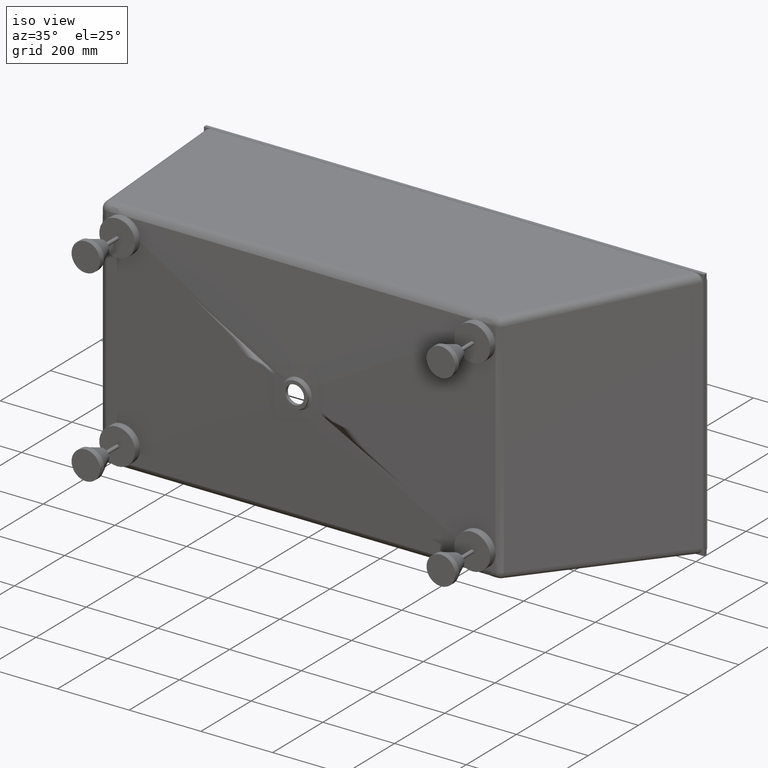
[diagram: clean part render]
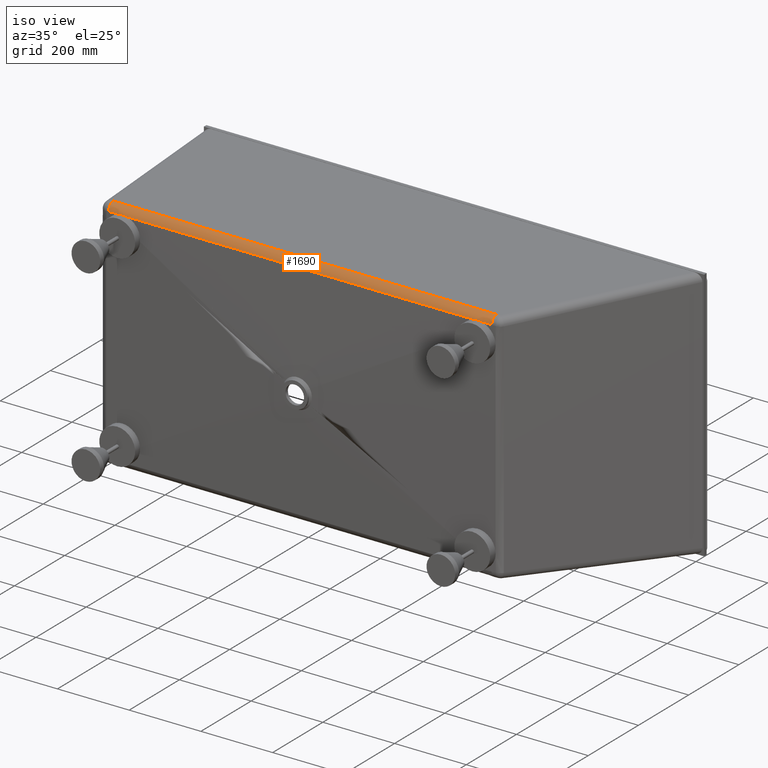
[diagram: same view with one face highlighted and labeled with its STEP entity id]
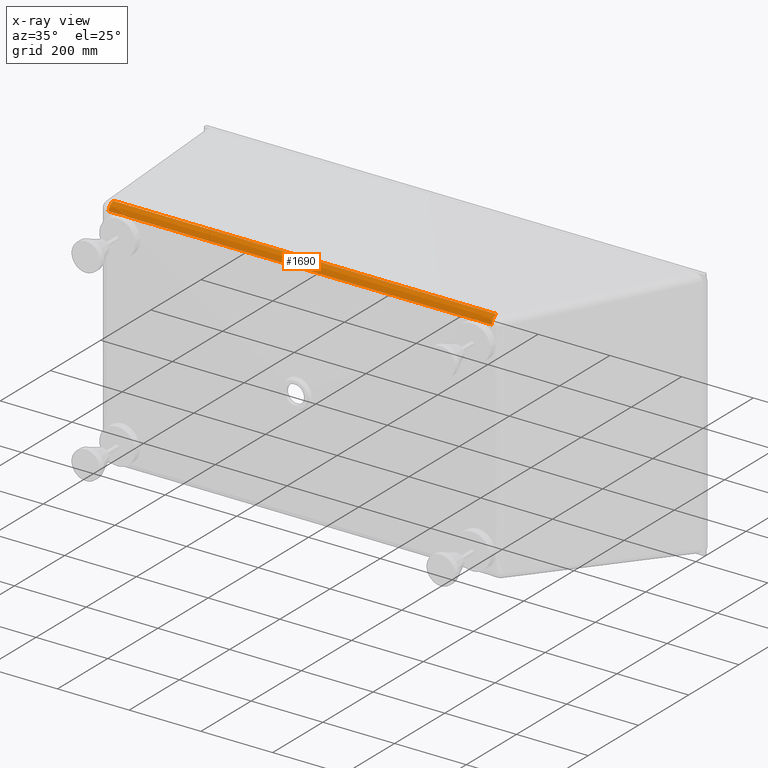
[diagram: x-ray of the same camera — body ghosted, the highlighted face saturated]
A machine part, iso view. The second image highlights one B-rep face of the part: STEP entity #1690.
The next image is the same camera in x-ray: the body ghosted, the highlighted face saturated — about 0% of this face is hidden behind the body in this view.
In plain terms, the highlighted face is a freeform B-spline surface patch.
Its self-contained STEP definition (entity closure, byte-faithful):
#12 = CARTESIAN_POINT ( 'NONE',  ( 360.4141559660058100, -433.3531879387952000, 311.3480932431434700 ) ) ;
#43 = CARTESIAN_POINT ( 'NONE',  ( -275.2632870983456400, -433.3560925314925500, 311.3554047723478700 ) ) ;
#54 = CARTESIAN_POINT ( 'NONE',  ( 180.2066036739043100, -414.5573102987468100, 330.5164267359443800 ) ) ;
#88 = CARTESIAN_POINT ( 'NONE',  ( -495.0000000000113100, -433.2683219678546000, 312.4999999999998900 ) ) ;
#100 = CARTESIAN_POINT ( 'NONE',  ( -493.2036411436475900, -433.2683973174894200, 312.5000000000004000 ) ) ;
#112 = CARTESIAN_POINT ( 'NONE',  ( -491.4119105093896600, -433.2786264664143800, 312.4034738479964500 ) ) ;
#114 = CARTESIAN_POINT ( 'NONE',  ( -436.1849997381701800, -433.3503079870133100, 311.3412174726932400 ) ) ;
#124 = CARTESIAN_POINT ( 'NONE',  ( -487.8376993706336900, -433.3109295575658300, 312.0169924165924700 ) ) ;
#134 = CARTESIAN_POINT ( 'NONE',  ( 180.2071020365930000, -432.6226637754771800, 329.4487344706837500 ) ) ;
#148 = CARTESIAN_POINT ( 'NONE',  ( 174.2101377613966500, -433.3586952968697100, 311.3618973699287300 ) ) ;
#189 = CARTESIAN_POINT ( 'NONE',  ( -484.2774998942145400, -433.3484600178455800, 311.3367483712974600 ) ) ;
#207 = B_SPLINE_CURVE_WITH_KNOTS ( 'NONE', 3,
 ( #4718, #8645, #5580, #7264, #3902, #7764, #148, #2211, #4733, #9946, #2199, #4728, #7274, #2189, #43, #4726, #7866, #114, #3582 ),
 .UNSPECIFIED., .F., .F.,
 ( 4, 3, 3, 3, 3, 3, 4 ),
 ( 0.04993263667955841900, 0.2000000000010019600, 0.3600000000308256600, 0.5200000001242122100, 0.6800000002347763600, 0.8742101379838663800, 1.018487639188252900 ),
 .UNSPECIFIED. ) ;
#258 = B_SPLINE_CURVE_WITH_KNOTS ( 'NONE', 3,
 ( #7984, #8594, #7949, #7942, #7883, #7880, #7863, #7852, #7831, #7760, #7716, #7710, #7669 ),
 .UNSPECIFIED., .F., .F.,
 ( 4, 3, 3, 3, 4 ),
 ( 0.0000000000000000000, 0.2993932388550118500, 0.6049166593372070600, 0.9104400797825722400, 1.067966100722419500 ),
 .UNSPECIFIED. ) ;
#283 = CARTESIAN_POINT ( 'NONE',  ( -486.0552179081805700, -433.3330597876689600, 311.7270606305874600 ) ) ;
#372 = CARTESIAN_POINT ( 'NONE',  ( -360.4840514003302600, -432.6319169940838400, 329.4481875897772100 ) ) ;
#648 = CARTESIAN_POINT ( 'NONE',  ( 533.9830500741080600, -414.5417389036713900, 330.5173470311615900 ) ) ;
#671 = CARTESIAN_POINT ( 'NONE',  ( 533.9865318700888100, -414.8463825890997900, 330.4993420852180700 ) ) ;
#681 = CARTESIAN_POINT ( 'NONE',  ( 533.9900811161943500, -415.1565087494192900, 330.4738939185780300 ) ) ;
#691 = VERTEX_POINT ( 'NONE', #5831 ) ;
#707 = CARTESIAN_POINT ( 'NONE',  ( 533.9971272928512500, -415.7713351117566300, 330.4089108589101900 ) ) ;
#716 = CARTESIAN_POINT ( 'NONE',  ( 534.0006449607889200, -416.0778523652395500, 330.3693110761851700 ) ) ;
#726 = CARTESIAN_POINT ( 'NONE',  ( 534.0111816975534100, -416.9947151813806300, 330.2291777561308700 ) ) ;
#738 = CARTESIAN_POINT ( 'NONE',  ( 534.0181835377227300, -417.6022752798871800, 330.1071050906753600 ) ) ;
#747 = CARTESIAN_POINT ( 'NONE',  ( 534.0388345695366800, -419.3891581524299000, 329.6618097387086000 ) ) ;
#770 = CARTESIAN_POINT ( 'NONE',  ( 534.0522316779391800, -420.5416497328745300, 329.2590854145710800 ) ) ;
#788 = CARTESIAN_POINT ( 'NONE',  ( 534.0717765799662400, -422.2127238121050800, 328.4975246758359000 ) ) ;
#820 = CARTESIAN_POINT ( 'NONE',  ( 534.0781995240620300, -422.7601072689754500, 328.2172475718949700 ) ) ;
#847 = CARTESIAN_POINT ( 'NONE',  ( 534.0908529321503700, -423.8347484260259000, 327.6021079014643100 ) ) ;
#882 = CARTESIAN_POINT ( 'NONE',  ( 534.0969842544361700, -424.3535863214855800, 327.2720684121611000 ) ) ;
#890 = CARTESIAN_POINT ( 'NONE',  ( 534.1148117048854800, -425.8565086810834800, 326.2167982251924600 ) ) ;
#897 = CARTESIAN_POINT ( 'NONE',  ( 534.1259459384227700, -426.7874390396737600, 325.4269473443825400 ) ) ;
#917 = CARTESIAN_POINT ( 'NONE',  ( 534.1415115163160900, -428.0763922428568500, 324.1115518871674200 ) ) ;
#939 = CARTESIAN_POINT ( 'NONE',  ( 534.1465339616700000, -428.4900129818173000, 323.6485827706057400 ) ) ;
#945 = VERTEX_POINT ( 'NONE', #4908 ) ;
#952 = CARTESIAN_POINT ( 'NONE',  ( 534.1560331175421700, -429.2675518896370500, 322.6924255082587400 ) ) ;
#957 = CARTESIAN_POINT ( 'NONE',  ( 534.1605133414454900, -429.6317924715461300, 322.1994730930156300 ) ) ;
#985 = CARTESIAN_POINT ( 'NONE',  ( 534.1731662018659100, -430.6527716223257600, 320.6771126700680800 ) ) ;
#990 = CARTESIAN_POINT ( 'NONE',  ( 534.1805576458615400, -431.2383703377383300, 319.6045669747119900 ) ) ;
#998 = CARTESIAN_POINT ( 'NONE',  ( 534.1900387027673100, -431.9705064563443100, 317.9070583065291100 ) ) ;
#1019 = CARTESIAN_POINT ( 'NONE',  ( 534.1929255667555500, -432.1896509522458700, 317.3261979827834700 ) ) ;
#1025 = CARTESIAN_POINT ( 'NONE',  ( 534.1980394688126800, -432.5696646518567800, 316.1587092531416900 ) ) ;
#1035 = CARTESIAN_POINT ( 'NONE',  ( 534.2002842355688000, -432.7319151972244000, 315.5691150524915000 ) ) ;
#1058 = CARTESIAN_POINT ( 'NONE',  ( -533.9830500741051100, -414.5417389036715000, 330.5173470311615900 ) ) ;
#1071 = CARTESIAN_POINT ( 'NONE',  ( 534.2060976311564700, -433.1367891193951900, 313.7830761480827800 ) ) ;
#1103 = ORIENTED_EDGE ( 'NONE', *, *, #7814, .F. ) ;
#1218 = ORIENTED_EDGE ( 'NONE', *, *, #9568, .F. ) ;
#1285 = CARTESIAN_POINT ( 'NONE',  ( -534.2101363228383700, -433.3465419508249300, 311.3321244643026400 ) ) ;
#1496 = CARTESIAN_POINT ( 'NONE',  ( -484.2774998942145400, -433.3484600178455800, 311.3367483712974600 ) ) ;
#1555 = VERTEX_POINT ( 'NONE', #5133 ) ;
#1690 = ADVANCED_FACE ( 'NONE', ( #7674 ), #3422, .T. ) ;
#1809 = EDGE_CURVE ( 'NONE', #945, #9001, #207, .T. ) ;
#1884 = ORIENTED_EDGE ( 'NONE', *, *, #7828, .F. ) ;
#1893 = CARTESIAN_POINT ( 'NONE',  ( 495.0000000000000000, -433.2683219678544900, 312.4999999999999400 ) ) ;
#1924 = CARTESIAN_POINT ( 'NONE',  ( 496.7979212759345800, -433.2682465526828000, 312.5000000000000000 ) ) ;
#1926 = CARTESIAN_POINT ( 'NONE',  ( 498.5911891015552400, -433.2783441335125800, 312.4033063352694100 ) ) ;
#1951 = CARTESIAN_POINT ( 'NONE',  ( 502.1684239070871700, -433.3103918688640900, 312.0161622204626600 ) ) ;
#1988 = CARTESIAN_POINT ( 'NONE',  ( 505.7315691282853400, -433.3476352026598900, 311.3347563119220900 ) ) ;
#2118 = CARTESIAN_POINT ( 'NONE',  ( 534.2101363228397300, -433.3465419508249900, 311.3321244643025800 ) ) ;
#2139 = CARTESIAN_POINT ( 'NONE',  ( 503.9523918548866300, -433.3323985340476300, 311.7257353060463200 ) ) ;
#2181 = CARTESIAN_POINT ( 'NONE',  ( 534.2087534047175300, -433.2982504483216500, 312.5695259735063600 ) ) ;
#2189 = CARTESIAN_POINT ( 'NONE',  ( -210.5265747113056400, -433.3580534837568100, 311.3602901758777100 ) ) ;
#2199 = CARTESIAN_POINT ( 'NONE',  ( -39.12319555728086600, -433.3607876484215400, 311.3671400052635400 ) ) ;
#2211 = CARTESIAN_POINT ( 'NONE',  ( 120.8768045042688900, -433.3598728294092600, 311.3648377716249900 ) ) ;
#2557 = CARTESIAN_POINT ( 'NONE',  ( 180.2071517038912400, -433.3606972961302400, 311.3669129495961600 ) ) ;
#2953 = EDGE_CURVE ( 'NONE', #691, #1555, #3213, .T. ) ;
#3046 = VERTEX_POINT ( 'NONE', #6267 ) ;
#3108 = VERTEX_POINT ( 'NONE', #1058 ) ;
#3154 = B_SPLINE_CURVE_WITH_KNOTS ( 'NONE', 3,
 ( #2118, #2181, #1071, #1035, #1025, #1019, #998, #990, #985, #957, #952, #939, #917, #897, #890, #882, #847, #820, #788, #770, #747, #738, #726, #716, #707, #681, #671, #648 ),
 .UNSPECIFIED., .F., .F.,
 ( 4, 2, 2, 2, 2, 2, 2, 2, 2, 2, 2, 2, 2, 4 ),
 ( 0.0000000000000000000, 0.003662301464142752200, 0.005493452196214110300, 0.007324602928285467100, 0.01098690439242818200, 0.01281805512449965700, 0.01464920585657113000, 0.01831150732071418900, 0.02014265805278577000, 0.02197380878485734700, 0.02563611024900028600, 0.02746726098107175500, 0.02838283634710757300, 0.02929841171314339100 ),
 .UNSPECIFIED. ) ;
#3199 = CARTESIAN_POINT ( 'NONE',  ( 360.4840514198570500, -432.6319170440796700, 329.4481876447748000 ) ) ;
#3213 = B_SPLINE_CURVE_WITH_KNOTS ( 'NONE', 3,
 ( #6407, #6956, #7070, #7111, #7133, #7176, #7256, #8132 ),
 .UNSPECIFIED., .F., .F.,
 ( 4, 2, 2, 4 ),
 ( 0.01076589698950147300, 0.01612216773796399500, 0.01880030311219508400, 0.02147843848642617300 ),
 .UNSPECIFIED. ) ;
#3413 = VERTEX_POINT ( 'NONE', #1285 ) ;
#3422 =( BOUNDED_SURFACE ( )  B_SPLINE_SURFACE ( 3, 2, ( 
 ( #7473, #10278, #6782 ),
 ( #6658, #372, #5963 ),
 ( #6021, #7447, #4321 ),
 ( #2557, #134, #54 ),
 ( #12, #3199, #6572 ),
 ( #7075, #7064, #4604 ) ),
 .UNSPECIFIED., .F., .F., .F. ) 
 B_SPLINE_SURFACE_WITH_KNOTS ( ( 4, 2, 4 ),
 ( 3, 3 ),
 ( -0.0005065791887296933900, 0.5401132318853462100, 1.080733042959422200 ),
 ( 0.0000000000000000000, 1.000000000000000000 ),
 .UNSPECIFIED. ) 
 GEOMETRIC_REPRESENTATION_ITEM ( )  RATIONAL_B_SPLINE_SURFACE ( (
 ( 1.000000000000000000, 0.7408956234330587000, 1.000000000000000000),
 ( 1.000000000000000000, 0.7411834525363049100, 1.000000000000000000),
 ( 1.000000000000000000, 0.7415055456730687000, 1.000000000000000000),
 ( 1.000000000000000000, 0.7415055456730687000, 1.000000000000000000),
 ( 1.000000000000000000, 0.7411834525362986900, 1.000000000000000000),
 ( 1.000000000000000000, 0.7408956234330623700, 1.000000000000000000) ) ) 
 REPRESENTATION_ITEM ( '' )  SURFACE ( )  );
#3476 = ORIENTED_EDGE ( 'NONE', *, *, #2953, .F. ) ;
#3582 = CARTESIAN_POINT ( 'NONE',  ( -484.2774998942145400, -433.3484600178455800, 311.3367483712974600 ) ) ;
#3902 = CARTESIAN_POINT ( 'NONE',  ( 280.8768041792887400, -433.3558805610633700, 311.3548865673518500 ) ) ;
#4075 = B_SPLINE_CURVE_WITH_KNOTS ( 'NONE', 3,
 ( #189, #283, #124, #112, #100, #88 ),
 .UNSPECIFIED., .F., .F.,
 ( 4, 2, 4 ),
 ( 0.0000000000000000000, 0.005382948494750736300, 0.01076589698950147300 ),
 .UNSPECIFIED. ) ;
#4321 = CARTESIAN_POINT ( 'NONE',  ( -180.2066036880744400, -414.5573103011034800, 330.5164267358050600 ) ) ;
#4401 = VERTEX_POINT ( 'NONE', #8582 ) ;
#4604 = CARTESIAN_POINT ( 'NONE',  ( 540.6198107813627300, -414.5414604640360500, 330.5173634874046800 ) ) ;
#4648 = EDGE_CURVE ( 'NONE', #4401, #945, #9106, .T. ) ;
#4699 = ORIENTED_EDGE ( 'NONE', *, *, #5544, .F. ) ;
#4718 = CARTESIAN_POINT ( 'NONE',  ( 484.2774998942136900, -433.3484600178456400, 311.3367483712972900 ) ) ;
#4726 = CARTESIAN_POINT ( 'NONE',  ( -339.9999993905751100, -433.3538295681389600, 311.3498408545048600 ) ) ;
#4728 = CARTESIAN_POINT ( 'NONE',  ( -92.45652893814642000, -433.3602877871766700, 311.3658801983535800 ) ) ;
#4733 = CARTESIAN_POINT ( 'NONE',  ( 67.54347114815772100, -433.3605791353301700, 311.3666159822030900 ) ) ;
#4898 = ORIENTED_EDGE ( 'NONE', *, *, #6337, .F. ) ;
#4908 = CARTESIAN_POINT ( 'NONE',  ( 484.2774998942136900, -433.3484600178456400, 311.3367483712972900 ) ) ;
#4909 = ORIENTED_EDGE ( 'NONE', *, *, #7165, .T. ) ;
#5030 = ORIENTED_EDGE ( 'NONE', *, *, #1809, .F. ) ;
#5133 = CARTESIAN_POINT ( 'NONE',  ( -505.7315691282594200, -433.3476352026596600, 311.3347563119278900 ) ) ;
#5544 = EDGE_CURVE ( 'NONE', #9001, #691, #4075, .T. ) ;
#5580 = CARTESIAN_POINT ( 'NONE',  ( 384.2325915200598800, -433.3522965597512100, 311.3460691843032500 ) ) ;
#5765 = CARTESIAN_POINT ( 'NONE',  ( -533.9830500741051100, -414.5417389036715000, 330.5173470311615900 ) ) ;
#5774 = CARTESIAN_POINT ( 'NONE',  ( -533.9865318693586000, -414.8463825896480400, 330.4993420851766900 ) ) ;
#5785 = CARTESIAN_POINT ( 'NONE',  ( 491.4235580114498700, -433.2785281427848100, 312.4046051721977600 ) ) ;
#5801 = CARTESIAN_POINT ( 'NONE',  ( -533.9900811169965200, -415.1565087499393500, 330.4738939185307900 ) ) ;
#5829 = CARTESIAN_POINT ( 'NONE',  ( -533.9971272932518800, -415.7713351122691300, 330.4089108588476600 ) ) ;
#5831 = CARTESIAN_POINT ( 'NONE',  ( -495.0000000000113100, -433.2683219678546000, 312.4999999999998900 ) ) ;
#5839 = CARTESIAN_POINT ( 'NONE',  ( 488.7306835490660400, -433.3028554616721000, 312.1136151667125200 ) ) ;
#5865 = CARTESIAN_POINT ( 'NONE',  ( -534.0006449607631100, -416.0778523657506300, 330.3693110761149700 ) ) ;
#5890 = CARTESIAN_POINT ( 'NONE',  ( -534.0111816975403400, -416.9947151818723200, 330.2291777560397500 ) ) ;
#5893 = CARTESIAN_POINT ( 'NONE',  ( -534.0181835377629800, -417.6022752803616500, 330.1071050905720200 ) ) ;
#5918 = CARTESIAN_POINT ( 'NONE',  ( -534.0388345695597500, -419.3891581528565700, 329.6618097385723400 ) ) ;
#5929 = CARTESIAN_POINT ( 'NONE',  ( -534.0522316778899500, -420.5416497332717000, 329.2590854144174300 ) ) ;
#5955 = CARTESIAN_POINT ( 'NONE',  ( -534.0717765799258800, -422.2127238124590500, 328.4975246756615100 ) ) ;
#5963 = CARTESIAN_POINT ( 'NONE',  ( -360.4132072653293300, -414.5490148773964200, 330.5169170090739500 ) ) ;
#5966 = CARTESIAN_POINT ( 'NONE',  ( -534.0781995240681700, -422.7601072693179800, 328.2172475717125100 ) ) ;
#5991 = CARTESIAN_POINT ( 'NONE',  ( -534.0908529321554900, -423.8347484263336500, 327.6021079012749100 ) ) ;
#5993 = EDGE_CURVE ( 'NONE', #3108, #7834, #258, .T. ) ;
#6003 = CARTESIAN_POINT ( 'NONE',  ( -534.0969842544457200, -424.3535863217767900, 327.2720684119690300 ) ) ;
#6007 = CARTESIAN_POINT ( 'NONE',  ( -534.1148117048933300, -425.8565086813276800, 326.2167982249959600 ) ) ;
#6021 = CARTESIAN_POINT ( 'NONE',  ( -180.2071517180614300, -433.3606972969450300, 311.3669129296224600 ) ) ;
#6039 = CARTESIAN_POINT ( 'NONE',  ( -534.1259459384283400, -426.7874390398891400, 325.4269473441862600 ) ) ;
#6048 = CARTESIAN_POINT ( 'NONE',  ( -534.1415115163210900, -428.0763922430327300, 324.1115518869758600 ) ) ;
#6077 = CARTESIAN_POINT ( 'NONE',  ( -534.1465339616739800, -428.4900129819805600, 323.6485827704167900 ) ) ;
#6087 = CARTESIAN_POINT ( 'NONE',  ( -534.1560331175458000, -429.2675518897731300, 322.6924255080795100 ) ) ;
#6089 = CARTESIAN_POINT ( 'NONE',  ( -534.1605133414377600, -429.6317924716701100, 322.1994730928419700 ) ) ;
#6124 = CARTESIAN_POINT ( 'NONE',  ( -534.1731662018575000, -430.6527716224149500, 320.6771126699127900 ) ) ;
#6134 = CARTESIAN_POINT ( 'NONE',  ( -534.1805576458683600, -431.2383703378081300, 319.6045669745713000 ) ) ;
#6146 = CARTESIAN_POINT ( 'NONE',  ( -534.1900387027740200, -431.9705064563899000, 317.9070583064128100 ) ) ;
#6160 = CARTESIAN_POINT ( 'NONE',  ( 484.2774998942136900, -433.3484600178456400, 311.3367483712972900 ) ) ;
#6163 = CARTESIAN_POINT ( 'NONE',  ( -534.1929255667560000, -432.1896509522837300, 317.3261979826770600 ) ) ;
#6183 = VERTEX_POINT ( 'NONE', #7330 ) ;
#6187 = CARTESIAN_POINT ( 'NONE',  ( 485.1612443235297900, -433.3408042099383700, 311.5307815543586100 ) ) ;
#6190 = CARTESIAN_POINT ( 'NONE',  ( -534.1980394688131400, -432.5696646518816800, 316.1587092530554600 ) ) ;
#6223 = CARTESIAN_POINT ( 'NONE',  ( 486.0490893746566600, -433.3313132629394900, 311.7005893517885500 ) ) ;
#6250 = CARTESIAN_POINT ( 'NONE',  ( 487.8329888311986300, -433.3123464752699800, 311.9919260535744500 ) ) ;
#6267 = CARTESIAN_POINT ( 'NONE',  ( 505.7315691282853400, -433.3476352026598900, 311.3347563119220900 ) ) ;
#6269 = CARTESIAN_POINT ( 'NONE',  ( -534.2002842355713000, -432.7319151972436700, 315.5691150524155500 ) ) ;
#6288 = CARTESIAN_POINT ( 'NONE',  ( -534.2060976311588500, -433.1367891194010400, 313.7830761480381600 ) ) ;
#6302 = CARTESIAN_POINT ( 'NONE',  ( 495.0000000000000000, -433.2683219678544900, 312.4999999999999400 ) ) ;
#6337 = EDGE_CURVE ( 'NONE', #3413, #3108, #7257, .T. ) ;
#6399 = CARTESIAN_POINT ( 'NONE',  ( 493.2140745051039500, -433.2683968798541500, 312.5000000000000600 ) ) ;
#6407 = CARTESIAN_POINT ( 'NONE',  ( -495.0000000000113100, -433.2683219678546000, 312.4999999999998900 ) ) ;
#6572 = CARTESIAN_POINT ( 'NONE',  ( 360.4132072848692000, -414.5490148891094000, 330.5169170083814300 ) ) ;
#6658 = CARTESIAN_POINT ( 'NONE',  ( -360.4141559464615600, -433.3531879401160700, 311.3480932093467000 ) ) ;
#6782 = CARTESIAN_POINT ( 'NONE',  ( -540.6198107813487500, -414.5414604640361100, 330.5173634874049100 ) ) ;
#6859 = CARTESIAN_POINT ( 'NONE',  ( -534.2087534047153700, -433.2982504483223900, 312.5695259734837400 ) ) ;
#6885 = CARTESIAN_POINT ( 'NONE',  ( 505.7315691282853400, -433.3476352026598900, 311.3347563119220900 ) ) ;
#6945 = ORIENTED_EDGE ( 'NONE', *, *, #5993, .F. ) ;
#6953 = CARTESIAN_POINT ( 'NONE',  ( 515.2244248595076200, -433.3472702349835100, 311.3338760538907800 ) ) ;
#6956 = CARTESIAN_POINT ( 'NONE',  ( -496.7874561507558200, -433.2682469916506400, 312.4999999999994900 ) ) ;
#6972 = CARTESIAN_POINT ( 'NONE',  ( -534.2101363228383700, -433.3465419508249300, 311.3321244643026400 ) ) ;
#7064 = CARTESIAN_POINT ( 'NONE',  ( 540.6205721330374000, -432.6398333624662800, 329.4477196990813500 ) ) ;
#7070 = CARTESIAN_POINT ( 'NONE',  ( -498.5794941656848800, -433.2782463958337200, 312.4044420295923000 ) ) ;
#7075 = CARTESIAN_POINT ( 'NONE',  ( 540.6206466333160300, -433.3462966282445400, 311.3315349563508200 ) ) ;
#7111 = CARTESIAN_POINT ( 'NONE',  ( -501.2746360941029600, -433.3023810945146000, 312.1129566754326000 ) ) ;
#7121 = CARTESIAN_POINT ( 'NONE',  ( 534.2101363228397300, -433.3465419508249900, 311.3321244643025800 ) ) ;
#7133 = CARTESIAN_POINT ( 'NONE',  ( -502.1731026545138500, -433.3118085900525200, 311.9910578672382800 ) ) ;
#7165 = EDGE_CURVE ( 'NONE', #6183, #7834, #3154, .T. ) ;
#7176 = CARTESIAN_POINT ( 'NONE',  ( -503.9585082787584200, -433.3306408252062700, 311.6992209280791700 ) ) ;
#7230 = CARTESIAN_POINT ( 'NONE',  ( -534.2101363228383700, -433.3465419508249300, 311.3321244643026400 ) ) ;
#7256 = CARTESIAN_POINT ( 'NONE',  ( -504.8470948573011600, -433.3400606671910400, 311.5291219133519000 ) ) ;
#7257 = B_SPLINE_CURVE_WITH_KNOTS ( 'NONE', 3,
 ( #6972, #6859, #6288, #6269, #6190, #6163, #6146, #6134, #6124, #6089, #6087, #6077, #6048, #6039, #6007, #6003, #5991, #5966, #5955, #5929, #5918, #5893, #5890, #5865, #5829, #5801, #5774, #5765 ),
 .UNSPECIFIED., .F., .F.,
 ( 4, 2, 2, 2, 2, 2, 2, 2, 2, 2, 2, 2, 2, 4 ),
 ( 0.0000000000000000000, 0.003662301464075650900, 0.005493452196113476400, 0.007324602928151301800, 0.01098690439222695100, 0.01281805512426477600, 0.01464920585630260000, 0.01831150732037848200, 0.02014265805241642300, 0.02197380878445436400, 0.02563611024853024900, 0.02746726098056818600, 0.02838283634658707700, 0.02929841171260596400 ),
 .UNSPECIFIED. ) ;
#7264 = CARTESIAN_POINT ( 'NONE',  ( 334.2101372918377800, -433.3540311558120900, 311.3503366486737000 ) ) ;
#7274 = CARTESIAN_POINT ( 'NONE',  ( -145.7898622245692200, -433.3592785316269000, 311.3633551334243100 ) ) ;
#7291 = ORIENTED_EDGE ( 'NONE', *, *, #4648, .F. ) ;
#7294 = CARTESIAN_POINT ( 'NONE',  ( -524.7172805909427800, -433.3469055007018900, 311.3329979746698700 ) ) ;
#7325 = CARTESIAN_POINT ( 'NONE',  ( -505.7315691282594200, -433.3476352026596600, 311.3347563119278900 ) ) ;
#7330 = CARTESIAN_POINT ( 'NONE',  ( 534.2101363228397300, -433.3465419508249900, 311.3321244643025800 ) ) ;
#7356 = CARTESIAN_POINT ( 'NONE',  ( -515.2244248595128500, -433.3472702349835100, 311.3338760538908300 ) ) ;
#7393 = CARTESIAN_POINT ( 'NONE',  ( 524.7172805909409600, -433.3469055007018900, 311.3329979746698100 ) ) ;
#7447 = CARTESIAN_POINT ( 'NONE',  ( -180.2071020507631500, -432.6226637554701700, 329.4487344306698400 ) ) ;
#7473 = CARTESIAN_POINT ( 'NONE',  ( -540.6206466333022700, -433.3462966282446600, 311.3315349563508200 ) ) ;
#7546 = EDGE_LOOP ( 'NONE', ( #5030, #7291, #1218, #1884, #4909, #6945, #4898, #1103, #3476, #4699 ) ) ;
#7589 = CARTESIAN_POINT ( 'NONE',  ( 533.9830500741080600, -414.5417389036713900, 330.5173470311615900 ) ) ;
#7669 = CARTESIAN_POINT ( 'NONE',  ( 533.9830500741080600, -414.5417389036713900, 330.5173470311615900 ) ) ;
#7674 = FACE_OUTER_BOUND ( 'NONE', #7546, .T. ) ;
#7710 = CARTESIAN_POINT ( 'NONE',  ( 481.4743764736733200, -414.5439436148274100, 330.5172167290837700 ) ) ;
#7716 = CARTESIAN_POINT ( 'NONE',  ( 428.9657028751485100, -414.5461956845594500, 330.5170836280358300 ) ) ;
#7760 = CARTESIAN_POINT ( 'NONE',  ( 376.4570292706299000, -414.5483012413015400, 330.5169591861479700 ) ) ;
#7764 = CARTESIAN_POINT ( 'NONE',  ( 227.5434710060349300, -433.3575177643304500, 311.3589569682332000 ) ) ;
#7814 = EDGE_CURVE ( 'NONE', #1555, #3413, #8829, .T. ) ;
#7828 = EDGE_CURVE ( 'NONE', #6183, #3046, #9674, .T. ) ;
#7831 = CARTESIAN_POINT ( 'NONE',  ( 274.6158892108775800, -414.5523849913632300, 330.5167178297613800 ) ) ;
#7834 = VERTEX_POINT ( 'NONE', #7589 ) ;
#7852 = CARTESIAN_POINT ( 'NONE',  ( 172.7747491033380200, -414.5558493376039500, 330.5165130811656100 ) ) ;
#7863 = CARTESIAN_POINT ( 'NONE',  ( 70.93360896718704100, -414.5569310640967700, 330.5164491493397300 ) ) ;
#7866 = CARTESIAN_POINT ( 'NONE',  ( -388.0924995827646700, -433.3521484267639000, 311.3457074546076300 ) ) ;
#7880 = CARTESIAN_POINT ( 'NONE',  ( -30.90753117217159800, -414.5580127905895400, 330.5163852175139100 ) ) ;
#7883 = CARTESIAN_POINT ( 'NONE',  ( -132.7486713513450800, -414.5565624948033000, 330.5164709323949500 ) ) ;
#7942 = CARTESIAN_POINT ( 'NONE',  ( -234.5898114480118000, -414.5534263427504700, 330.5166562841711200 ) ) ;
#7949 = CARTESIAN_POINT ( 'NONE',  ( -334.3875576855311400, -414.5503531160913400, 330.5168379169523400 ) ) ;
#7984 = CARTESIAN_POINT ( 'NONE',  ( -533.9830500741051100, -414.5417389036715000, 330.5173470311615900 ) ) ;
#8123 = B_SPLINE_CURVE_WITH_KNOTS ( 'NONE', 3,
 ( #1988, #2139, #1951, #1926, #1924, #1893 ),
 .UNSPECIFIED., .F., .F.,
 ( 4, 2, 4 ),
 ( 0.0000000000000000000, 0.005387582645649201800, 0.01077516529129840400 ),
 .UNSPECIFIED. ) ;
#8132 = CARTESIAN_POINT ( 'NONE',  ( -505.7315691282594200, -433.3476352026596600, 311.3347563119278900 ) ) ;
#8582 = CARTESIAN_POINT ( 'NONE',  ( 495.0000000000000000, -433.2683219678544900, 312.4999999999999400 ) ) ;
#8594 = CARTESIAN_POINT ( 'NONE',  ( -434.1853038773779200, -414.5459291676661500, 330.5170993796252800 ) ) ;
#8645 = CARTESIAN_POINT ( 'NONE',  ( 434.2550457067989100, -433.3503821460927300, 311.3413968179178800 ) ) ;
#8829 = B_SPLINE_CURVE_WITH_KNOTS ( 'NONE', 3,
 ( #7325, #7356, #7294, #7230 ),
 .UNSPECIFIED., .F., .F.,
 ( 4, 4 ),
 ( 1.039941708531647600, 1.068420275870100000 ),
 .UNSPECIFIED. ) ;
#9001 = VERTEX_POINT ( 'NONE', #1496 ) ;
#9106 = B_SPLINE_CURVE_WITH_KNOTS ( 'NONE', 3,
 ( #6302, #6399, #5785, #5839, #6250, #6223, #6187, #6160 ),
 .UNSPECIFIED., .F., .F.,
 ( 4, 2, 2, 4 ),
 ( 0.01077516529129840400, 0.01612680183485274600, 0.01880262010662982900, 0.02147843837840690900 ),
 .UNSPECIFIED. ) ;
#9568 = EDGE_CURVE ( 'NONE', #3046, #4401, #8123, .T. ) ;
#9674 = B_SPLINE_CURVE_WITH_KNOTS ( 'NONE', 3,
 ( #7121, #7393, #6953, #6885 ),
 .UNSPECIFIED., .F., .F.,
 ( 4, 4 ),
 ( 0.0000000000000000000, 0.02847856733714869800 ),
 .UNSPECIFIED. ) ;
#9946 = CARTESIAN_POINT ( 'NONE',  ( 14.21013779772034100, -433.3606833918758500, 311.3668779937332800 ) ) ;
#10278 = CARTESIAN_POINT ( 'NONE',  ( -540.6205721330235300, -432.6398333624665600, 329.4477196990815700 ) ) ;